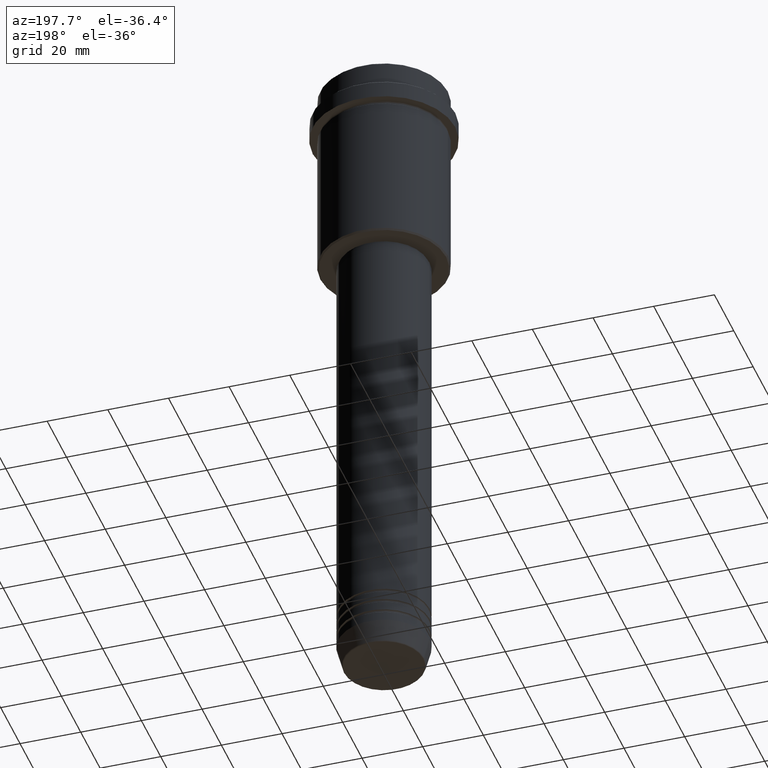
[diagram: clean part render]
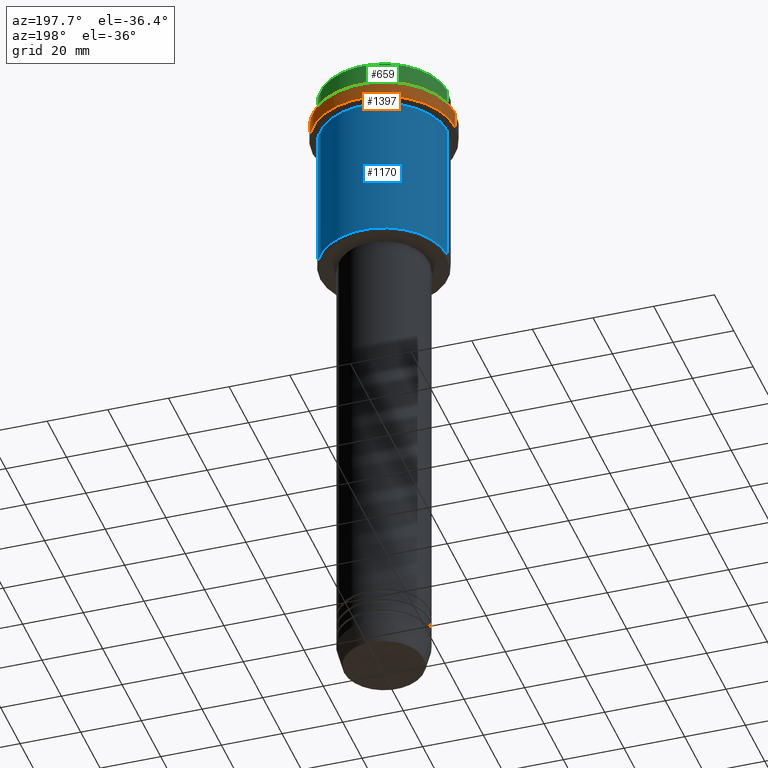
[diagram: same view with three faces highlighted in distinct colors, each labeled with its STEP entity id]
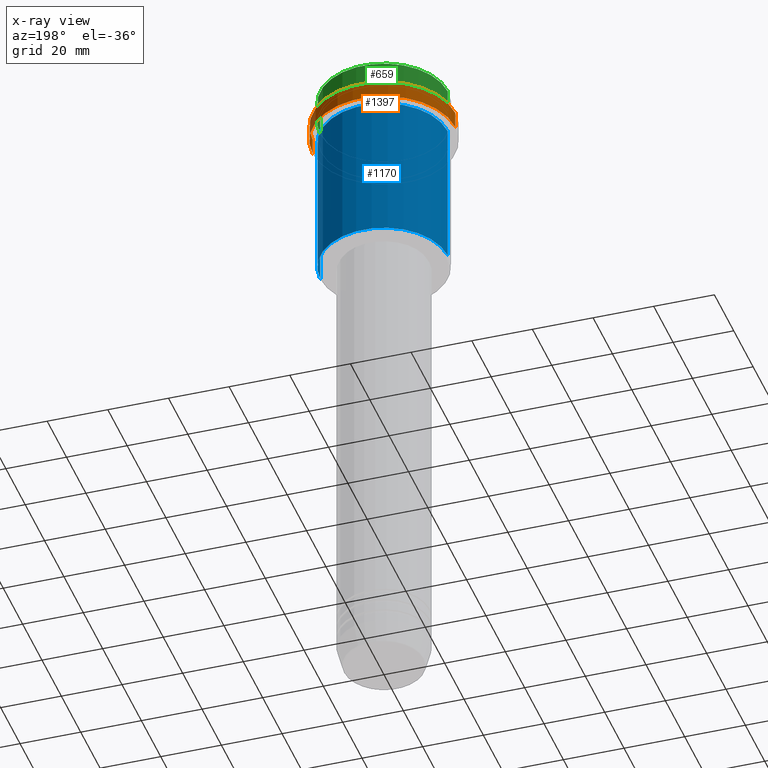
[diagram: x-ray of the same camera — body ghosted, the three highlighted faces saturated]
A machine part, auxiliary view with three faces highlighted in distinct colors.
The next image is the same camera in x-ray (body ghosted, the three faces saturated) — at least one of them is partly hidden behind the body in this view.
Their STEP definitions:

[orange] entity #1397 — the highlighted cylindrical surface (partial cylindrical patch) has radius 23.5 mm, axis along (-0, -0, 1).
#97 = VERTEX_POINT ( 'NONE', #780 ) ;
#113 = VECTOR ( 'NONE', #465, 1000.000000000000000 ) ;
#145 = DIRECTION ( 'NONE',  ( -0.000000000000000000, -0.000000000000000000, 1.000000000000000000 ) ) ;
#259 = AXIS2_PLACEMENT_3D ( 'NONE', #1172, #968, #509 ) ;
#267 = VERTEX_POINT ( 'NONE', #1115 ) ;
#298 = ORIENTED_EDGE ( 'NONE', *, *, #299, .T. ) ;
#299 = EDGE_CURVE ( 'NONE', #267, #697, #1279, .T. ) ;
#317 = AXIS2_PLACEMENT_3D ( 'NONE', #1236, #481, #924 ) ;
#346 = CARTESIAN_POINT ( 'NONE',  ( 23.50000000000000000, 0.000000000000000000, 0.000000000000000000 ) ) ;
#352 = DIRECTION ( 'NONE',  ( -0.000000000000000000, -0.000000000000000000, 1.000000000000000000 ) ) ;
#465 = DIRECTION ( 'NONE',  ( -0.000000000000000000, -0.000000000000000000, 1.000000000000000000 ) ) ;
#481 = DIRECTION ( 'NONE',  ( -0.000000000000000000, -0.000000000000000000, 1.000000000000000000 ) ) ;
#483 = CARTESIAN_POINT ( 'NONE',  ( -23.50000000000000000, 2.877919977996280320E-15, -9.499999999999973355 ) ) ;
#486 = EDGE_LOOP ( 'NONE', ( #298, #833, #1211, #845 ) ) ;
#509 = DIRECTION ( 'NONE',  ( 1.000000000000000000, 0.000000000000000000, 0.000000000000000000 ) ) ;
#585 = CIRCLE ( 'NONE', #259, 23.50000000000000000 ) ;
#610 = DIRECTION ( 'NONE',  ( 1.000000000000000000, 0.000000000000000000, 0.000000000000000000 ) ) ;
#635 = VECTOR ( 'NONE', #352, 1000.000000000000000 ) ;
#683 = CARTESIAN_POINT ( 'NONE',  ( -23.50000000000000000, 2.877919977996280320E-15, 0.000000000000000000 ) ) ;
#697 = VERTEX_POINT ( 'NONE', #843 ) ;
#745 = EDGE_CURVE ( 'NONE', #950, #97, #585, .T. ) ;
#780 = CARTESIAN_POINT ( 'NONE',  ( 23.50000000000000000, 0.000000000000000000, -9.499999999999973355 ) ) ;
#833 = ORIENTED_EDGE ( 'NONE', *, *, #947, .T. ) ;
#843 = CARTESIAN_POINT ( 'NONE',  ( -23.50000000000000711, 2.877919977996281109E-15, -15.00000000000000178 ) ) ;
#845 = ORIENTED_EDGE ( 'NONE', *, *, #847, .F. ) ;
#847 = EDGE_CURVE ( 'NONE', #267, #97, #1104, .T. ) ;
#924 = DIRECTION ( 'NONE',  ( 1.000000000000000000, 0.000000000000000000, 0.000000000000000000 ) ) ;
#929 = AXIS2_PLACEMENT_3D ( 'NONE', #1386, #145, #610 ) ;
#947 = EDGE_CURVE ( 'NONE', #697, #950, #1353, .T. ) ;
#950 = VERTEX_POINT ( 'NONE', #483 ) ;
#968 = DIRECTION ( 'NONE',  ( 0.000000000000000000, 0.000000000000000000, -1.000000000000000000 ) ) ;
#1025 = CYLINDRICAL_SURFACE ( 'NONE', #317, 23.50000000000000000 ) ;
#1104 = LINE ( 'NONE', #346, #635 ) ;
#1115 = CARTESIAN_POINT ( 'NONE',  ( 23.50000000000000355, 0.000000000000000000, -15.00000000000000178 ) ) ;
#1172 = CARTESIAN_POINT ( 'NONE',  ( 0.000000000000000000, 0.000000000000000000, -9.499999999999973355 ) ) ;
#1211 = ORIENTED_EDGE ( 'NONE', *, *, #745, .T. ) ;
#1236 = CARTESIAN_POINT ( 'NONE',  ( 0.000000000000000000, 0.000000000000000000, 0.000000000000000000 ) ) ;
#1279 = CIRCLE ( 'NONE', #929, 23.50000000000000355 ) ;
#1345 = FACE_OUTER_BOUND ( 'NONE', #486, .T. ) ;
#1353 = LINE ( 'NONE', #683, #113 ) ;
#1386 = CARTESIAN_POINT ( 'NONE',  ( 0.000000000000000000, 0.000000000000000000, -15.00000000000000178 ) ) ;
#1397 = ADVANCED_FACE ( 'NONE', ( #1345 ), #1025, .T. ) ;

[blue] entity #1170 — the highlighted cylindrical surface (partial cylindrical patch) has radius 21 mm, axis along (-0, -0, 1).
#22 = ORIENTED_EDGE ( 'NONE', *, *, #351, .T. ) ;
#43 = AXIS2_PLACEMENT_3D ( 'NONE', #1402, #101, #840 ) ;
#59 = VERTEX_POINT ( 'NONE', #688 ) ;
#101 = DIRECTION ( 'NONE',  ( -0.000000000000000000, -0.000000000000000000, 1.000000000000000000 ) ) ;
#120 = DIRECTION ( 'NONE',  ( -0.000000000000000000, -0.000000000000000000, 1.000000000000000000 ) ) ;
#123 = CARTESIAN_POINT ( 'NONE',  ( 20.99999999999999645, 0.000000000000000000, -16.00000000000000355 ) ) ;
#165 = DIRECTION ( 'NONE',  ( 1.000000000000000000, 0.000000000000000000, 0.000000000000000000 ) ) ;
#179 = ORIENTED_EDGE ( 'NONE', *, *, #900, .F. ) ;
#241 = AXIS2_PLACEMENT_3D ( 'NONE', #439, #1082, #1214 ) ;
#271 = LINE ( 'NONE', #714, #1312 ) ;
#338 = CARTESIAN_POINT ( 'NONE',  ( -20.99999999999999645, 2.571758278209441267E-15, -64.50000000000002842 ) ) ;
#351 = EDGE_CURVE ( 'NONE', #59, #1228, #1223, .T. ) ;
#410 = FACE_OUTER_BOUND ( 'NONE', #1385, .T. ) ;
#439 = CARTESIAN_POINT ( 'NONE',  ( 0.000000000000000000, 0.000000000000000000, -64.50000000000002842 ) ) ;
#474 = AXIS2_PLACEMENT_3D ( 'NONE', #1361, #1137, #165 ) ;
#688 = CARTESIAN_POINT ( 'NONE',  ( 20.99999999999999645, 0.000000000000000000, -64.50000000000002842 ) ) ;
#714 = CARTESIAN_POINT ( 'NONE',  ( -20.99999999999999645, 2.571758278209441267E-15, 0.000000000000000000 ) ) ;
#731 = VECTOR ( 'NONE', #120, 1000.000000000000000 ) ;
#771 = LINE ( 'NONE', #1098, #731 ) ;
#811 = VERTEX_POINT ( 'NONE', #123 ) ;
#825 = VERTEX_POINT ( 'NONE', #1108 ) ;
#840 = DIRECTION ( 'NONE',  ( 1.000000000000000000, 0.000000000000000000, 0.000000000000000000 ) ) ;
#900 = EDGE_CURVE ( 'NONE', #59, #811, #771, .T. ) ;
#989 = ORIENTED_EDGE ( 'NONE', *, *, #1037, .T. ) ;
#1037 = EDGE_CURVE ( 'NONE', #1228, #825, #271, .T. ) ;
#1049 = ORIENTED_EDGE ( 'NONE', *, *, #1364, .F. ) ;
#1075 = CYLINDRICAL_SURFACE ( 'NONE', #43, 20.99999999999999645 ) ;
#1082 = DIRECTION ( 'NONE',  ( -0.000000000000000000, -0.000000000000000000, 1.000000000000000000 ) ) ;
#1098 = CARTESIAN_POINT ( 'NONE',  ( 20.99999999999999645, 0.000000000000000000, 0.000000000000000000 ) ) ;
#1108 = CARTESIAN_POINT ( 'NONE',  ( -20.99999999999999645, 2.571758278209441267E-15, -16.00000000000000355 ) ) ;
#1120 = DIRECTION ( 'NONE',  ( -0.000000000000000000, -0.000000000000000000, 1.000000000000000000 ) ) ;
#1137 = DIRECTION ( 'NONE',  ( -0.000000000000000000, -0.000000000000000000, 1.000000000000000000 ) ) ;
#1170 = ADVANCED_FACE ( 'NONE', ( #410 ), #1075, .T. ) ;
#1214 = DIRECTION ( 'NONE',  ( -1.000000000000000000, 0.000000000000000000, 0.000000000000000000 ) ) ;
#1223 = CIRCLE ( 'NONE', #241, 20.99999999999999645 ) ;
#1228 = VERTEX_POINT ( 'NONE', #338 ) ;
#1312 = VECTOR ( 'NONE', #1120, 1000.000000000000000 ) ;
#1334 = CIRCLE ( 'NONE', #474, 20.99999999999999645 ) ;
#1361 = CARTESIAN_POINT ( 'NONE',  ( 0.000000000000000000, 0.000000000000000000, -16.00000000000000355 ) ) ;
#1364 = EDGE_CURVE ( 'NONE', #811, #825, #1334, .T. ) ;
#1385 = EDGE_LOOP ( 'NONE', ( #22, #989, #1049, #179 ) ) ;
#1402 = CARTESIAN_POINT ( 'NONE',  ( 0.000000000000000000, 0.000000000000000000, 0.000000000000000000 ) ) ;

[green] entity #659 — the highlighted cylindrical surface (partial cylindrical patch) has radius 21 mm, axis along (-0, -0, 1).
#18 = EDGE_LOOP ( 'NONE', ( #217, #1100, #532, #983 ) ) ;
#60 = VERTEX_POINT ( 'NONE', #1002 ) ;
#95 = EDGE_CURVE ( 'NONE', #326, #1143, #330, .T. ) ;
#127 = AXIS2_PLACEMENT_3D ( 'NONE', #798, #1365, #1140 ) ;
#160 = EDGE_CURVE ( 'NONE', #595, #326, #1176, .T. ) ;
#177 = DIRECTION ( 'NONE',  ( 0.000000000000000000, 0.000000000000000000, -1.000000000000000000 ) ) ;
#207 = CARTESIAN_POINT ( 'NONE',  ( -20.99999999999999645, 2.571758278209441267E-15, 0.000000000000000000 ) ) ;
#217 = ORIENTED_EDGE ( 'NONE', *, *, #602, .T. ) ;
#326 = VERTEX_POINT ( 'NONE', #1026 ) ;
#330 = CIRCLE ( 'NONE', #1306, 20.99999999999999645 ) ;
#366 = EDGE_CURVE ( 'NONE', #60, #1143, #479, .T. ) ;
#368 = DIRECTION ( 'NONE',  ( 1.000000000000000000, 0.000000000000000000, 0.000000000000000000 ) ) ;
#479 = LINE ( 'NONE', #1414, #861 ) ;
#524 = FACE_OUTER_BOUND ( 'NONE', #18, .T. ) ;
#532 = ORIENTED_EDGE ( 'NONE', *, *, #95, .T. ) ;
#595 = VERTEX_POINT ( 'NONE', #1155 ) ;
#602 = EDGE_CURVE ( 'NONE', #60, #595, #1310, .T. ) ;
#636 = CARTESIAN_POINT ( 'NONE',  ( 0.000000000000000000, 0.000000000000000000, 0.000000000000000000 ) ) ;
#656 = AXIS2_PLACEMENT_3D ( 'NONE', #636, #733, #960 ) ;
#659 = ADVANCED_FACE ( 'NONE', ( #524 ), #1278, .T. ) ;
#730 = CARTESIAN_POINT ( 'NONE',  ( 20.99999999999999645, 0.000000000000000000, -0.5000000000000073275 ) ) ;
#733 = DIRECTION ( 'NONE',  ( -0.000000000000000000, -0.000000000000000000, 1.000000000000000000 ) ) ;
#798 = CARTESIAN_POINT ( 'NONE',  ( 0.000000000000000000, 0.000000000000000000, -7.999999999999998224 ) ) ;
#849 = CARTESIAN_POINT ( 'NONE',  ( 0.000000000000000000, 0.000000000000000000, -0.5000000000000073275 ) ) ;
#861 = VECTOR ( 'NONE', #1239, 1000.000000000000000 ) ;
#960 = DIRECTION ( 'NONE',  ( 1.000000000000000000, 0.000000000000000000, 0.000000000000000000 ) ) ;
#983 = ORIENTED_EDGE ( 'NONE', *, *, #366, .F. ) ;
#1002 = CARTESIAN_POINT ( 'NONE',  ( 20.99999999999999645, 0.000000000000000000, -7.999999999999998224 ) ) ;
#1026 = CARTESIAN_POINT ( 'NONE',  ( -20.99999999999999645, 2.571758278209441267E-15, -0.5000000000000073275 ) ) ;
#1027 = DIRECTION ( 'NONE',  ( -0.000000000000000000, -0.000000000000000000, 1.000000000000000000 ) ) ;
#1084 = VECTOR ( 'NONE', #1027, 1000.000000000000000 ) ;
#1100 = ORIENTED_EDGE ( 'NONE', *, *, #160, .T. ) ;
#1140 = DIRECTION ( 'NONE',  ( 1.000000000000000000, 0.000000000000000000, 0.000000000000000000 ) ) ;
#1143 = VERTEX_POINT ( 'NONE', #730 ) ;
#1155 = CARTESIAN_POINT ( 'NONE',  ( -20.99999999999999645, 2.571758278209441267E-15, -7.999999999999998224 ) ) ;
#1176 = LINE ( 'NONE', #207, #1084 ) ;
#1239 = DIRECTION ( 'NONE',  ( -0.000000000000000000, -0.000000000000000000, 1.000000000000000000 ) ) ;
#1278 = CYLINDRICAL_SURFACE ( 'NONE', #656, 20.99999999999999645 ) ;
#1306 = AXIS2_PLACEMENT_3D ( 'NONE', #849, #177, #368 ) ;
#1310 = CIRCLE ( 'NONE', #127, 20.99999999999999645 ) ;
#1365 = DIRECTION ( 'NONE',  ( -0.000000000000000000, -0.000000000000000000, 1.000000000000000000 ) ) ;
#1414 = CARTESIAN_POINT ( 'NONE',  ( 20.99999999999999645, 0.000000000000000000, 0.000000000000000000 ) ) ;